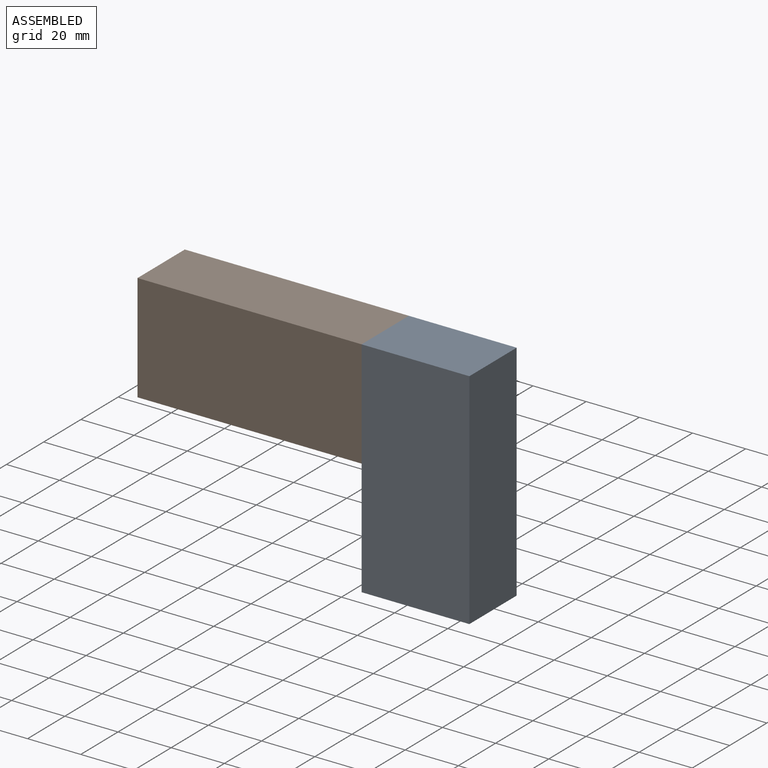
[diagram: assembled view]
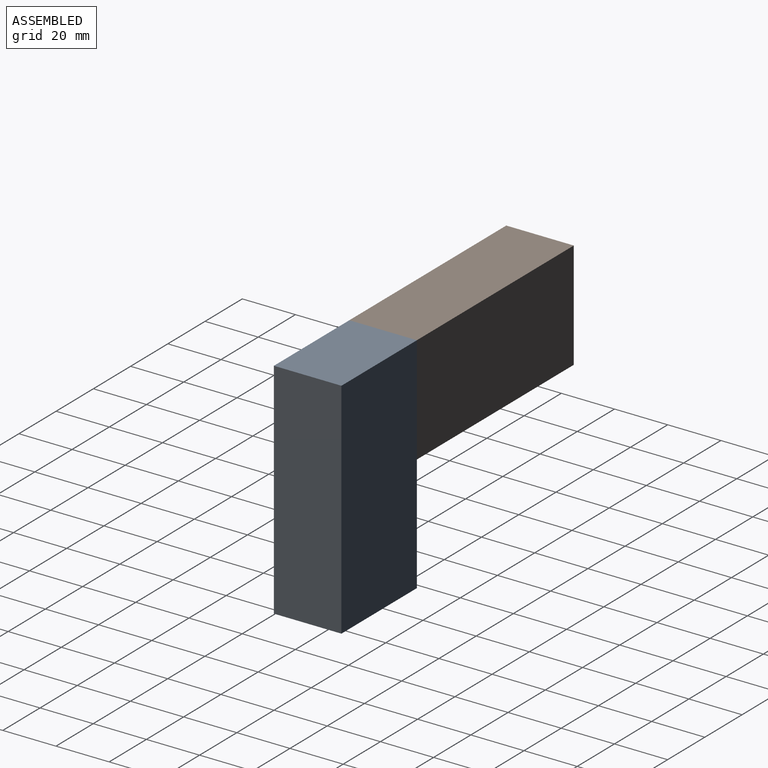
[diagram: assembled view, second angle]
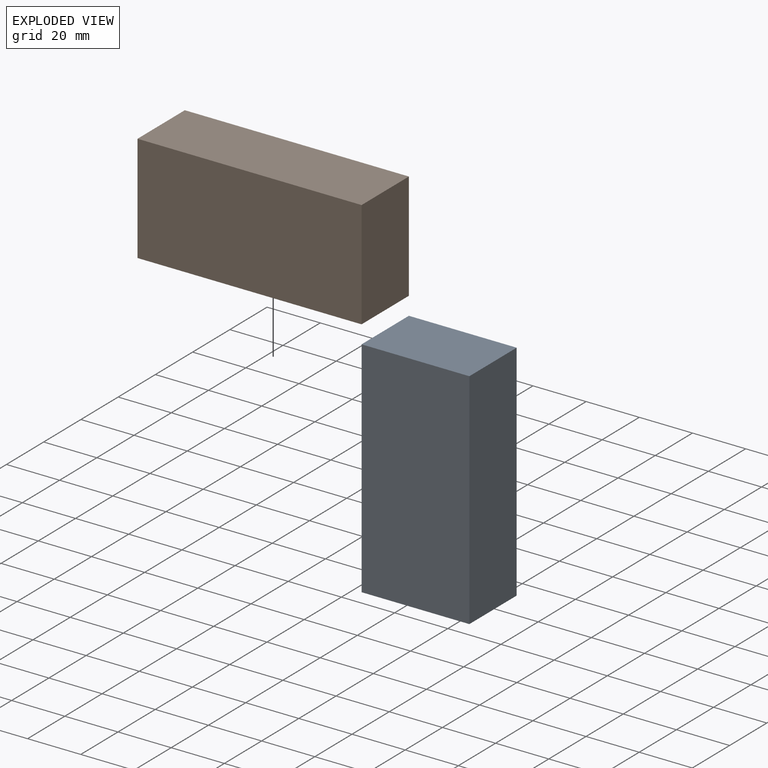
[diagram: exploded view]
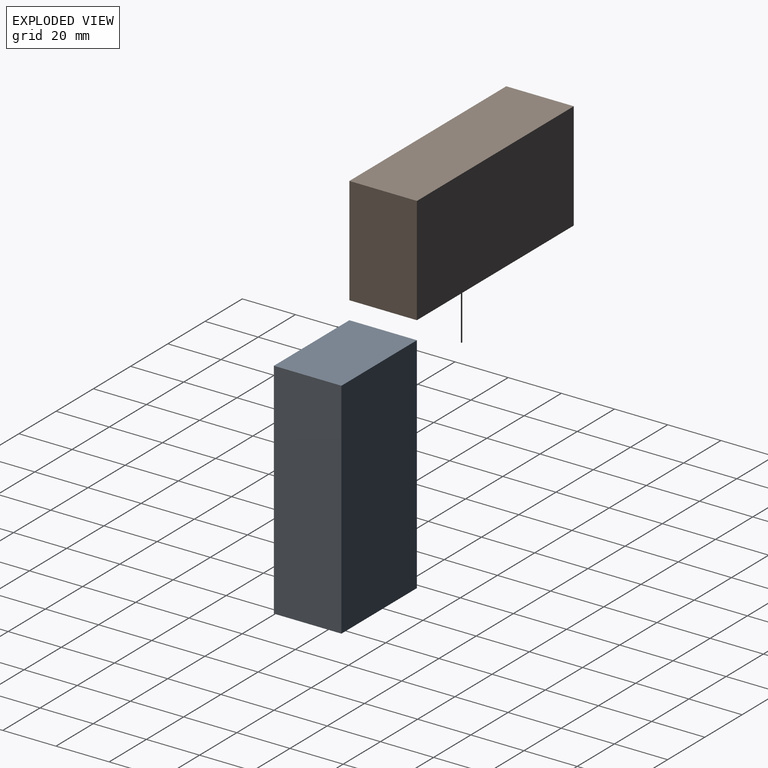
[diagram: exploded view, second angle]
ASSEMBLY  parts=2 mates=3
PART A: 6 faces, bbox 84.3x25.4x40.5 mm
  f0: plane 84.26x25.4mm, normal (0,0,1), area 2140.2mm2, adj f1,f3,f4,f5
  f1: plane 40.54x25.4mm, normal (-1,0,0), area 1029.8mm2, adj f0,f2,f4,f5
  f2: plane 84.26x25.4mm, normal (0,0,-1), area 2140.2mm2, adj f1,f3,f4,f5
  f3: plane 40.54x25.4mm, normal (1,0,0), area 1029.8mm2, adj f0,f2,f4,f5
  f4: plane 84.26x40.54mm, normal (0,-1,0), area 3416.2mm2, adj f0,f1,f2,f3
  f5: plane 84.26x40.54mm, normal (0,1,0), area 3416.2mm2, adj f0,f1,f2,f3
PART B: same geometry as A
PLACE A rot(axis=(0.71,0,-0.71),180deg) t=(46.42,-37.56,35.71)mm
PLACE B t=(-78.38,-12.16,-4.84)mm
MATE planar B.f0 <-> A.f1  axis (0,0,1) through (-36.25,-24.86,35.71)mm
MATE planar A.f0 <-> B.f3  axis (-1,0,0) through (5.88,-24.86,-6.42)mm
MATE planar B.f4 <-> A.f5  axis (0,-1,0) through (-36.25,-37.56,15.43)mm
